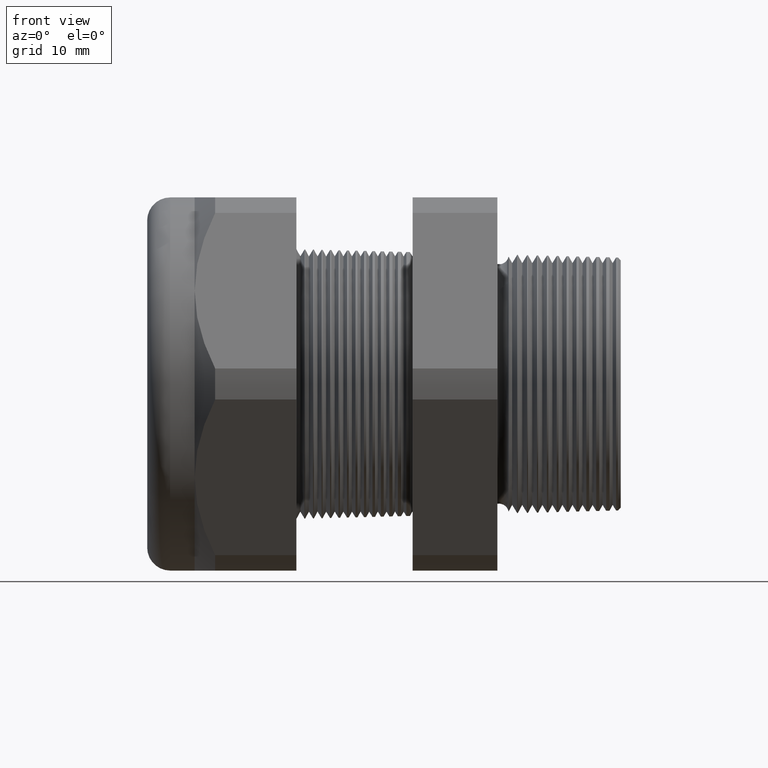
[diagram: clean part render]
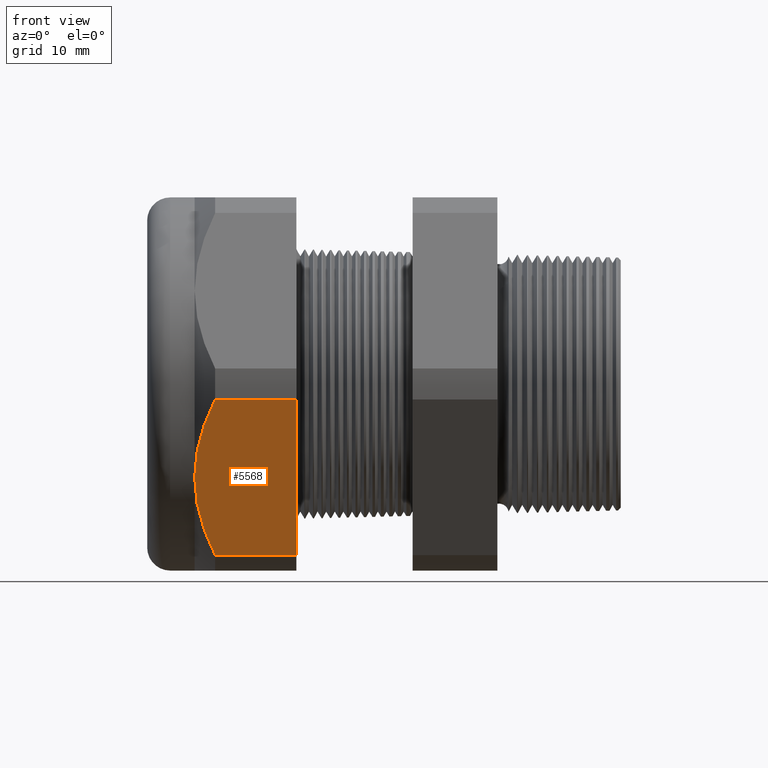
[diagram: same view with one face highlighted and labeled with its STEP entity id]
A machine part, front view. The second image highlights one B-rep face of the part: STEP entity #5568.
In plain terms, the highlighted planar face has unit normal (0, -0.866, -0.5).
Its self-contained STEP definition (entity closure, byte-faithful):
#2150 = VERTEX_POINT ( 'NONE', #4999 ) ;
#2151 = VERTEX_POINT ( 'NONE', #4998 ) ;
#2158 = EDGE_CURVE ( 'NONE', #2151, #2150, #5054, .T. ) ;
#3877 = ORIENTED_EDGE ( 'NONE', *, *, #5564, .T. ) ;
#4998 = CARTESIAN_POINT ( 'NONE',  ( -1.010314960629921100, -0.4063420493440881300, -0.5961949252843793400 ) ) ;
#4999 = CARTESIAN_POINT ( 'NONE',  ( -1.293145669291338600, -0.4063420493440881300, -0.5961949252843793400 ) ) ;
#5047 = DIRECTION ( 'NONE',  ( -1.000000000000000000, 0.0000000000000000000, 0.0000000000000000000 ) ) ;
#5048 = VECTOR ( 'NONE', #5047, 39.37007874015748100 ) ;
#5049 = CARTESIAN_POINT ( 'NONE',  ( 0.1200000000000000900, -0.4063420493440881300, -0.5961949252843793400 ) ) ;
#5054 = LINE ( 'NONE', #5049, #5048 ) ;
#5092 = CARTESIAN_POINT ( 'NONE',  ( -1.364645669291338500, -0.5629165124598851700, -0.3250000000000001800 ) ) ;
#5093 = CARTESIAN_POINT ( 'NONE',  ( -1.010314960629921100, -0.7194909755756819800, -0.05380507471562082100 ) ) ;
#5094 = DIRECTION ( 'NONE',  ( 0.0000000000000000000, 0.5000000000000001100, -0.8660254037844386000 ) ) ;
#5095 = VECTOR ( 'NONE', #5094, 39.37007874015748100 ) ;
#5096 = CARTESIAN_POINT ( 'NONE',  ( -1.010314960629921100, -0.4454165124598852300, -0.5285159698893432400 ) ) ;
#5097 = LINE ( 'NONE', #5096, #5095 ) ;
#5123 = FACE_OUTER_BOUND ( 'NONE', #5159, .T. ) ;
#5124 = DIRECTION ( 'NONE',  ( -1.000000000000000000, 0.0000000000000000000, 0.0000000000000000000 ) ) ;
#5125 = VECTOR ( 'NONE', #5124, 39.37007874015748100 ) ;
#5126 = CARTESIAN_POINT ( 'NONE',  ( 0.1200000000000000900, -0.7194909755756819800, -0.05380507471562082100 ) ) ;
#5127 = LINE ( 'NONE', #5126, #5125 ) ;
#5132 = CARTESIAN_POINT ( 'NONE',  ( -1.364645669291338500, -0.5629165124598851700, -0.3250000000000001800 ) ) ;
#5133 = CARTESIAN_POINT ( 'NONE',  ( -1.364645669291339100, -0.5696940647084652900, -0.3132609351545070900 ) ) ;
#5134 = CARTESIAN_POINT ( 'NONE',  ( -1.364216759191442700, -0.5765336067434361200, -0.3014145008494348900 ) ) ;
#5135 = CARTESIAN_POINT ( 'NONE',  ( -1.362513212994343100, -0.5901225526399743700, -0.2778777561353256200 ) ) ;
#5136 = CARTESIAN_POINT ( 'NONE',  ( -1.361244147852752800, -0.5968650273424733800, -0.2661994473818493100 ) ) ;
#5137 = CARTESIAN_POINT ( 'NONE',  ( -1.356260635251699000, -0.6169458720203931900, -0.2314184041407926800 ) ) ;
#5138 = CARTESIAN_POINT ( 'NONE',  ( -1.351369503974020800, -0.6301376168794387000, -0.2085696318044401900 ) ) ;
#5139 = CARTESIAN_POINT ( 'NONE',  ( -1.332638942225223600, -0.6692072927766704600, -0.1408989681151861800 ) ) ;
#5140 = CARTESIAN_POINT ( 'NONE',  ( -1.314767232512606100, -0.6945827664818915400, -0.09694735839161411400 ) ) ;
#5141 = CARTESIAN_POINT ( 'NONE',  ( -1.293145669291338600, -0.7194909755756819800, -0.05380507471562082100 ) ) ;
#5143 = CARTESIAN_POINT ( 'NONE',  ( -1.293145669291338600, -0.7194909755756819800, -0.05380507471562082100 ) ) ;
#5144 = B_SPLINE_CURVE_WITH_KNOTS ( 'NONE', 3,
 ( #5141, #5140, #5139, #5138, #5137, #5136, #5135, #5134, #5133, #5132 ),
 .UNSPECIFIED., .F., .F.,
 ( 4, 2, 2, 2, 4 ),
 ( 2.483249165348705300E-007, 0.004082012451910165000, 0.006122894515406979500, 0.007143335547155381600, 0.008163776578903783600 ),
 .UNSPECIFIED. ) ;
#5146 = CARTESIAN_POINT ( 'NONE',  ( -1.293145669291338600, -0.4063420493440881300, -0.5961949252843793400 ) ) ;
#5147 = CARTESIAN_POINT ( 'NONE',  ( -1.314794001287756600, -0.4312810962751702500, -0.5529992289074007200 ) ) ;
#5148 = CARTESIAN_POINT ( 'NONE',  ( -1.332917759362547400, -0.4570573558384616300, -0.5083534377146963200 ) ) ;
#5149 = CARTESIAN_POINT ( 'NONE',  ( -1.357805912917037400, -0.5092737903524782200, -0.4179119201463270500 ) ) ;
#5150 = CARTESIAN_POINT ( 'NONE',  ( -1.364645669291338000, -0.5358248930679733200, -0.3719240612461092200 ) ) ;
#5151 = CARTESIAN_POINT ( 'NONE',  ( -1.364645669291338500, -0.5629165124598851700, -0.3250000000000001800 ) ) ;
#5152 = B_SPLINE_CURVE_WITH_KNOTS ( 'NONE', 3,
 ( #5151, #5150, #5149, #5148, #5147, #5146 ),
 .UNSPECIFIED., .F., .F.,
 ( 4, 2, 4 ),
 ( 0.008163776578903783600, 0.01224274182034620000, 0.01632170706178861700 ),
 .UNSPECIFIED. ) ;
#5159 = EDGE_LOOP ( 'NONE', ( #3877, #5558, #5554, #5453, #5422 ) ) ;
#5181 = DIRECTION ( 'NONE',  ( 0.0000000000000000000, 0.5000000000000001100, -0.8660254037844386000 ) ) ;
#5182 = DIRECTION ( 'NONE',  ( 0.0000000000000000000, -0.8660254037844386000, -0.5000000000000001100 ) ) ;
#5183 = CARTESIAN_POINT ( 'NONE',  ( 0.1200000000000000900, -0.4063420493440883000, -0.5961949252843793400 ) ) ;
#5184 = AXIS2_PLACEMENT_3D ( 'NONE', #5183, #5182, #5181 ) ;
#5185 = PLANE ( 'NONE',  #5184 ) ;
#5422 = ORIENTED_EDGE ( 'NONE', *, *, #5447, .F. ) ;
#5447 = EDGE_CURVE ( 'NONE', #5557, #2151, #5097, .T. ) ;
#5453 = ORIENTED_EDGE ( 'NONE', *, *, #2158, .F. ) ;
#5554 = ORIENTED_EDGE ( 'NONE', *, *, #5560, .T. ) ;
#5557 = VERTEX_POINT ( 'NONE', #5093 ) ;
#5558 = ORIENTED_EDGE ( 'NONE', *, *, #5561, .T. ) ;
#5559 = VERTEX_POINT ( 'NONE', #5092 ) ;
#5560 = EDGE_CURVE ( 'NONE', #5559, #2150, #5152, .T. ) ;
#5561 = EDGE_CURVE ( 'NONE', #5562, #5559, #5144, .T. ) ;
#5562 = VERTEX_POINT ( 'NONE', #5143 ) ;
#5564 = EDGE_CURVE ( 'NONE', #5557, #5562, #5127, .T. ) ;
#5568 = ADVANCED_FACE ( 'NONE', ( #5123 ), #5185, .T. ) ;